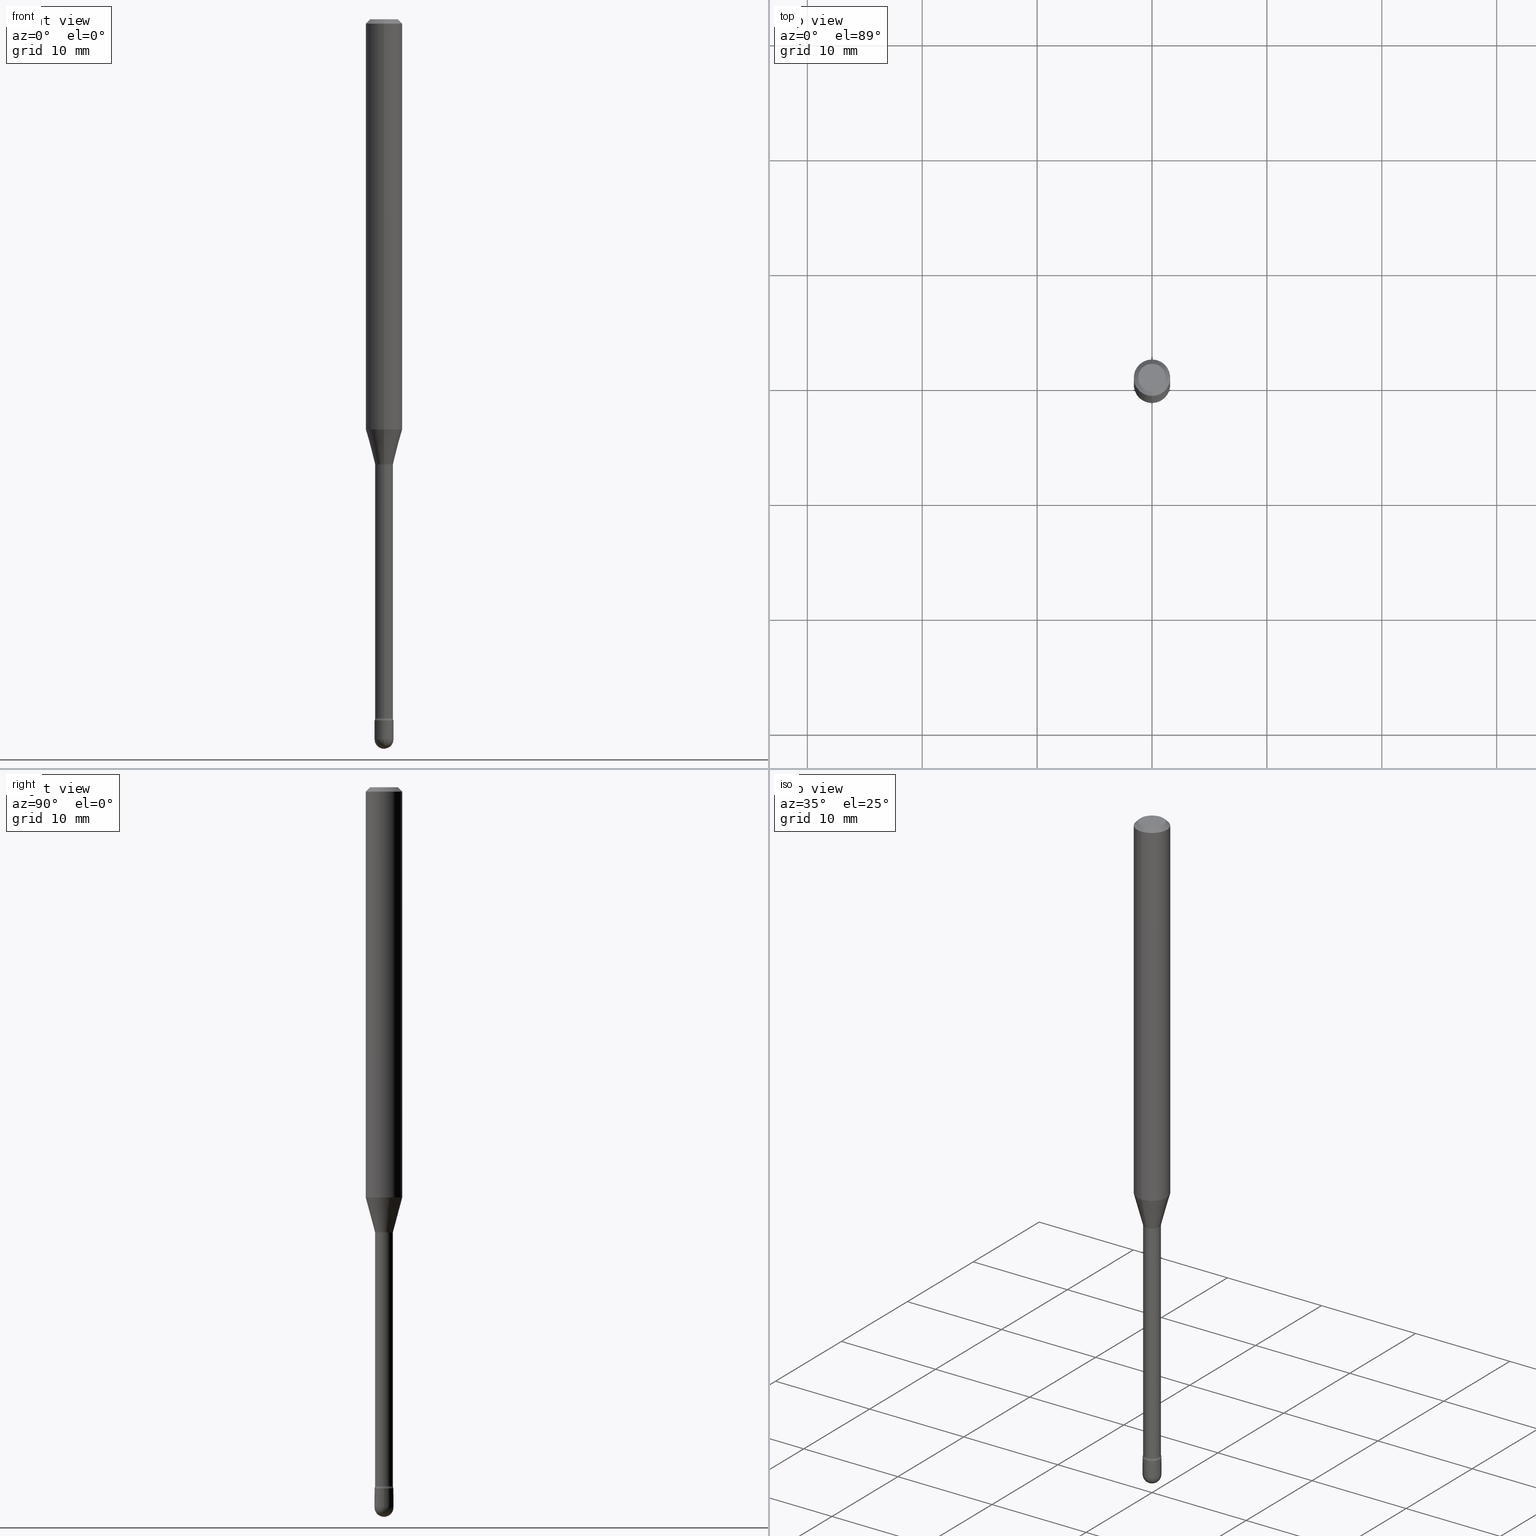
[diagram: canonical four-view strip — front | top / right | iso, engineering-drawing reading convention]
A machine part, canonical four-view strip (front | top / right | iso — engineering-drawing reading convention). The complete STEP part file that produces these views, byte-faithful:
ISO-10303-21;
HEADER;
FILE_DESCRIPTION (( 'STEP AP203' ),
    '1' );
FILE_NAME ('09505.STEP',
    '2024-04-09T23:59:22',
    ( '' ),
    ( '' ),
    'SwSTEP 2.0',
    'SolidWorks 2023',
    '' );
FILE_SCHEMA (( 'CONFIG_CONTROL_DESIGN' ));
ENDSEC;

DATA;
#1 = CARTESIAN_POINT ( 'NONE',  ( 0.000000000000000000, 0.000000000000000000, 0.000000000000000000 ) ) ;
#2 = DATE_AND_TIME ( #429, #498 ) ;
#3 = CARTESIAN_POINT ( 'NONE',  ( -2.309263891219726642E-16, -0.03250000000000868861, -2.467499999999999805 ) ) ;
#4 = EDGE_CURVE ( 'NONE', #131, #299, #33, .T. ) ;
#5 = DIRECTION ( 'NONE',  ( -2.445462509514312655E-29, 3.491490356034149509E-15, 1.000000000000000000 ) ) ;
#6 = DIRECTION ( 'NONE',  ( -6.982962677686265922E-15, -1.000000000000000000, 3.491490356034149509E-15 ) ) ;
#7 = DIRECTION ( 'NONE',  ( -2.445462509514312655E-29, 3.491490356034149509E-15, 1.000000000000000000 ) ) ;
#8 = CARTESIAN_POINT ( 'NONE',  ( 5.855929933387993596E-29, -8.360715962634647749E-15, -2.394604224178627838 ) ) ;
#9 = SHAPE_DEFINITION_REPRESENTATION ( #559, #449 ) ;
#10 = DIRECTION ( 'NONE',  ( -6.982962677686265922E-15, -1.000000000000000000, 0.000000000000000000 ) ) ;
#11 = CIRCLE ( 'NONE', #176, 0.03055000000000000077 ) ;
#12 = PRODUCT_DEFINITION_FORMATION_WITH_SPECIFIED_SOURCE ( 'ANY', '', #79, .NOT_KNOWN. ) ;
#13 = CARTESIAN_POINT ( 'NONE',  ( 2.309263891220913384E-16, 0.03249999999999162587, -2.402000000000000135 ) ) ;
#14 = CARTESIAN_POINT ( 'NONE',  ( 2.269462870248644893E-16, 0.03249999999999145933, -2.467499999999999805 ) ) ;
#15 = CC_DESIGN_PERSON_AND_ORGANIZATION_ASSIGNMENT ( #168, #564, ( #208 ) ) ;
#16 = CARTESIAN_POINT ( 'NONE',  ( 6.034194279261823970E-29, -8.615230203595461689E-15, -2.467499999999999805 ) ) ;
#17 = AXIS2_PLACEMENT_3D ( 'NONE', #524, #7, #141 ) ;
#18 = CIRCLE ( 'NONE', #532, 0.06250000000000000000 ) ;
#19 = EDGE_LOOP ( 'NONE', ( #469, #500, #340, #76 ) ) ;
#20 = ORIENTED_EDGE ( 'NONE', *, *, #94, .F. ) ;
#21 = DIRECTION ( 'NONE',  ( -6.982962677686265922E-15, -1.000000000000000000, 3.491490356034149115E-15 ) ) ;
#22 = ORIENTED_EDGE ( 'NONE', *, *, #461, .F. ) ;
#23 = CIRCLE ( 'NONE', #250, 0.03055000000000000077 ) ;
#24 = CONICAL_SURFACE ( 'NONE', #92, 0.06250000000000000000, 0.7853981633974483900 ) ;
#25 = DIRECTION ( 'NONE',  ( -2.445468806185136877E-29, 3.491481338843145188E-15, 1.000000000000000000 ) ) ;
#26 = VERTEX_POINT ( 'NONE', #295 ) ;
#27 = ORIENTED_EDGE ( 'NONE', *, *, #412, .F. ) ;
#28 = CARTESIAN_POINT ( 'NONE',  ( 2.239985974484304837E-16, 0.03054999999999169838, -2.394604224178627838 ) ) ;
#29 = APPROVAL ( #230, 'UNSPECIFIED' ) ;
#30 = DIRECTION ( 'NONE',  ( -2.445462509514312655E-29, 3.491490356034149509E-15, 1.000000000000000000 ) ) ;
#31 = DIRECTION ( 'NONE',  ( -6.982962677686266711E-15, -1.000000000000000000, 3.491490356034149904E-15 ) ) ;
#32 = ORIENTED_EDGE ( 'NONE', *, *, #63, .T. ) ;
#33 = CIRCLE ( 'NONE', #356, 0.01500000000000002720 ) ;
#34 = AXIS2_PLACEMENT_3D ( 'NONE', #499, #104, #53 ) ;
#35 = DIRECTION ( 'NONE',  ( 6.982962677686265922E-15, 1.000000000000000000, -3.491490356034149509E-15 ) ) ;
#36 = DIRECTION ( 'NONE',  ( -2.445462509514312655E-29, 3.491490356034149509E-15, 1.000000000000000000 ) ) ;
#37 = DIRECTION ( 'NONE',  ( -2.445468806185136597E-29, 3.491481338843145583E-15, 1.000000000000000000 ) ) ;
#38 = ADVANCED_FACE ( 'NONE', ( #333 ), #367, .T. ) ;
#39 = FACE_OUTER_BOUND ( 'NONE', #162, .T. ) ;
#40 = PERSON_AND_ORGANIZATION ( #310, #420 ) ;
#41 = EDGE_CURVE ( 'NONE', #387, #547, #174, .T. ) ;
#42 = DIRECTION ( 'NONE',  ( -6.982962677686263555E-15, -1.000000000000000000, 0.000000000000000000 ) ) ;
#43 = AXIS2_PLACEMENT_3D ( 'NONE', #222, #36, #64 ) ;
#44 = AXIS2_PLACEMENT_3D ( 'NONE', #264, #560, #393 ) ;
#45 = DIRECTION ( 'NONE',  ( -6.982962677686265133E-15, -1.000000000000000000, 0.000000000000000000 ) ) ;
#46 = DIRECTION ( 'NONE',  ( -2.445462509514312655E-29, 3.491490356034149509E-15, 1.000000000000000000 ) ) ;
#47 = CARTESIAN_POINT ( 'NONE',  ( 2.269462870248623692E-16, 0.03249999999999161199, -2.402000000000000135 ) ) ;
#48 = DIRECTION ( 'NONE',  ( -1.000000000000000000, 6.982962677686265922E-15, -4.883557194083112340E-29 ) ) ;
#49 = SECURITY_CLASSIFICATION_LEVEL ( 'unclassified' ) ;
#50 = AXIS2_PLACEMENT_3D ( 'NONE', #432, #226, #35 ) ;
#51 = TOROIDAL_SURFACE ( 'NONE', #274, 0.04555000000000008348, 0.01500000000000002720 ) ;
#52 = DIRECTION ( 'NONE',  ( -6.982962677686265922E-15, -1.000000000000000000, 3.491490356034149115E-15 ) ) ;
#53 = DIRECTION ( 'NONE',  ( -6.982962677686265922E-15, -1.000000000000000000, 4.370956789862821150E-15 ) ) ;
#54 = CARTESIAN_POINT ( 'NONE',  ( 0.03250000000000000111, -8.727830476773152219E-15, -2.467499999999999805 ) ) ;
#55 = ORIENTED_EDGE ( 'NONE', *, *, #434, .F. ) ;
#56 = AXIS2_PLACEMENT_3D ( 'NONE', #388, #555, #424 ) ;
#57 = CIRCLE ( 'NONE', #265, 0.03055000000000005975 ) ;
#58 = FACE_OUTER_BOUND ( 'NONE', #70, .T. ) ;
#59 = VERTEX_POINT ( 'NONE', #123 ) ;
#60 = ORIENTED_EDGE ( 'NONE', *, *, #511, .T. ) ;
#61 = CARTESIAN_POINT ( 'NONE',  ( 6.034194279261823970E-29, -8.615230203595461689E-15, -2.467499999999999805 ) ) ;
#62 = CARTESIAN_POINT ( 'NONE',  ( 3.437735765853609990E-29, -4.908200893030823515E-15, -1.405760976698174902 ) ) ;
#63 = EDGE_CURVE ( 'NONE', #99, #26, #442, .T. ) ;
#64 = DIRECTION ( 'NONE',  ( -6.982962677686265922E-15, -1.000000000000000000, 3.491490356034149115E-15 ) ) ;
#65 = ORIENTED_EDGE ( 'NONE', *, *, #214, .F. ) ;
#66 = MECHANICAL_CONTEXT ( 'NONE', #171, 'mechanical' ) ;
#67 = DIRECTION ( 'NONE',  ( 7.105427357600997914E-15, 1.000000000000000000, 0.000000000000000000 ) ) ;
#68 = CIRCLE ( 'NONE', #34, 0.06250000000000000000 ) ;
#69 = AXIS2_PLACEMENT_3D ( 'NONE', #328, #376, #165 ) ;
#70 = EDGE_LOOP ( 'NONE', ( #203, #20, #32, #422 ) ) ;
#71 = DIRECTION ( 'NONE',  ( -1.807323732225326589E-15, -0.2588190451025176864, 0.9659258262890690894 ) ) ;
#72 = DIRECTION ( 'NONE',  ( 1.000000000000000000, -7.105427357601001070E-15, 4.926315618970823189E-29 ) ) ;
#73 = ORIENTED_EDGE ( 'NONE', *, *, #277, .T. ) ;
#74 = DATE_AND_TIME ( #220, #346 ) ;
#75 = LINE ( 'NONE', #180, #326 ) ;
#76 = ORIENTED_EDGE ( 'NONE', *, *, #405, .F. ) ;
#77 = DIRECTION ( 'NONE',  ( -1.000000000000000000, 6.982962677686266711E-15, -4.883557194083112901E-29 ) ) ;
#78 = DIRECTION ( 'NONE',  ( -2.445462509514312655E-29, 3.491490356034149509E-15, 1.000000000000000000 ) ) ;
#79 = PRODUCT ( '09505', '09505', '', ( #66 ) ) ;
#80 = PRODUCT_RELATED_PRODUCT_CATEGORY ( 'detail', '', ( #79 ) ) ;
#81 = DIRECTION ( 'NONE',  ( -2.445462509514312375E-29, 3.491490356034149509E-15, 1.000000000000000000 ) ) ;
#82 = CONICAL_SURFACE ( 'NONE', #161, 0.03106111260566398607, 0.2617993877991497409 ) ;
#83 = EDGE_CURVE ( 'NONE', #549, #59, #251, .T. ) ;
#84 = DIRECTION ( 'NONE',  ( -2.445468806185136597E-29, 3.491481338843145583E-15, 1.000000000000000000 ) ) ;
#85 = ORIENTED_EDGE ( 'NONE', *, *, #214, .T. ) ;
#86 = DIRECTION ( 'NONE',  ( -6.982962677686265922E-15, -1.000000000000000000, 0.000000000000000000 ) ) ;
#87 = ADVANCED_FACE ( 'NONE', ( #257 ), #268, .F. ) ;
#88 = FACE_OUTER_BOUND ( 'NONE', #391, .T. ) ;
#89 = DIRECTION ( 'NONE',  ( -2.445462509514312655E-29, 3.491490356034149509E-15, 1.000000000000000000 ) ) ;
#90 = DATE_AND_TIME ( #445, #557 ) ;
#91 = CARTESIAN_POINT ( 'NONE',  ( 3.724665611643138049E-29, -5.317862781338191581E-15, -1.523092501787273401 ) ) ;
#92 = AXIS2_PLACEMENT_3D ( 'NONE', #210, #481, #382 ) ;
#93 = ORIENTED_EDGE ( 'NONE', *, *, #434, .T. ) ;
#94 = EDGE_CURVE ( 'NONE', #99, #182, #451, .T. ) ;
#95 = DIRECTION ( 'NONE',  ( 1.000000000000000000, -6.982962677686287221E-15, 0.000000000000000000 ) ) ;
#96 = PERSON_AND_ORGANIZATION ( #310, #420 ) ;
#97 = LINE ( 'NONE', #132, #312 ) ;
#98 = ADVANCED_FACE ( 'NONE', ( #517 ), #341, .T. ) ;
#99 = VERTEX_POINT ( 'NONE', #553 ) ;
#100 = DIRECTION ( 'NONE',  ( -2.445468806185136597E-29, 3.491481338843145583E-15, 1.000000000000000000 ) ) ;
#101 = CIRCLE ( 'NONE', #228, 0.06250000000000000000 ) ;
#102 = TOROIDAL_SURFACE ( 'NONE', #540, 0.04555000000000000021, 0.01500000000000002373 ) ;
#103 = SECURITY_CLASSIFICATION ( '', '', #49 ) ;
#104 = DIRECTION ( 'NONE',  ( -2.445462509514312655E-29, 3.491490356034149509E-15, 1.000000000000000000 ) ) ;
#105 = CARTESIAN_POINT ( 'NONE',  ( 4.440892098500967344E-16, 0.06249999999999506645, -1.405760976698175124 ) ) ;
#106 = ORIENTED_EDGE ( 'NONE', *, *, #133, .T. ) ;
#107 = EDGE_CURVE ( 'NONE', #286, #467, #164, .T. ) ;
#108 = DIRECTION ( 'NONE',  ( -6.982962677686265133E-15, -1.000000000000000000, 0.000000000000000000 ) ) ;
#109 = EDGE_LOOP ( 'NONE', ( #179, #417, #27, #411 ) ) ;
#110 = ORIENTED_EDGE ( 'NONE', *, *, #475, .F. ) ;
#111 = COORDINATED_UNIVERSAL_TIME_OFFSET ( 5, 0, .BEHIND. ) ;
#112 = ORIENTED_EDGE ( 'NONE', *, *, #394, .T. ) ;
#113 = AXIS2_PLACEMENT_3D ( 'NONE', #369, #381, #267 ) ;
#114 = CC_DESIGN_APPROVAL ( #29, ( #103 ) ) ;
#115 = VERTEX_POINT ( 'NONE', #247 ) ;
#116 = EDGE_CURVE ( 'NONE', #115, #286, #204, .T. ) ;
#117 =( NAMED_UNIT ( * ) PLANE_ANGLE_UNIT ( ) SI_UNIT ( $, .RADIAN. ) );
#118 = ORIENTED_EDGE ( 'NONE', *, *, #244, .F. ) ;
#119 = EDGE_LOOP ( 'NONE', ( #287, #324 ) ) ;
#120 = DIRECTION ( 'NONE',  ( -6.982962677686265922E-15, -1.000000000000000000, 3.491490356034149115E-15 ) ) ;
#121 = ORIENTED_EDGE ( 'NONE', *, *, #541, .F. ) ;
#122 = DIRECTION ( 'NONE',  ( 6.982962677686266711E-15, 1.000000000000000000, 0.000000000000000000 ) ) ;
#123 = CARTESIAN_POINT ( 'NONE',  ( -4.364351673553574033E-16, -0.06250000000000494049, -1.405760976698174458 ) ) ;
#124 = EDGE_CURVE ( 'NONE', #59, #467, #172, .T. ) ;
#125 = AXIS2_PLACEMENT_3D ( 'NONE', #272, #466, #392 ) ;
#126 = EDGE_LOOP ( 'NONE', ( #554, #93, #118, #505 ) ) ;
#127 = ORIENTED_EDGE ( 'NONE', *, *, #457, .T. ) ;
#128 = ORIENTED_EDGE ( 'NONE', *, *, #4, .F. ) ;
#129 = FACE_OUTER_BOUND ( 'NONE', #334, .T. ) ;
#130 = CYLINDRICAL_SURFACE ( 'NONE', #147, 0.06250000000000000000 ) ;
#131 = VERTEX_POINT ( 'NONE', #296 ) ;
#132 = CARTESIAN_POINT ( 'NONE',  ( 0.03250000000000000111, -2.269462870248036977E-16, 1.584757452133679343E-30 ) ) ;
#133 = EDGE_CURVE ( 'NONE', #370, #361, #433, .T. ) ;
#134 = CC_DESIGN_PERSON_AND_ORGANIZATION_ASSIGNMENT ( #397, #358, ( #103 ) ) ;
#135 = VERTEX_POINT ( 'NONE', #218 ) ;
#136 = CONICAL_SURFACE ( 'NONE', #431, 0.06250000000000000000, 0.7853981633974483900 ) ;
#137 =( GEOMETRIC_REPRESENTATION_CONTEXT ( 3 ) GLOBAL_UNCERTAINTY_ASSIGNED_CONTEXT ( ( #464 ) ) GLOBAL_UNIT_ASSIGNED_CONTEXT ( ( #507, #117, #463 ) ) REPRESENTATION_CONTEXT ( 'NONE', 'WORKASPACE' ) );
#138 = ADVANCED_FACE ( 'NONE', ( #515 ), #130, .T. ) ;
#139 = PERSON_AND_ORGANIZATION_ROLE ( 'design_owner' ) ;
#140 = DATE_AND_TIME ( #400, #410 ) ;
#141 = DIRECTION ( 'NONE',  ( -6.982962677686265922E-15, -1.000000000000000000, 0.000000000000000000 ) ) ;
#142 = COORDINATED_UNIVERSAL_TIME_OFFSET ( 5, 0, .BEHIND. ) ;
#143 = DIRECTION ( 'NONE',  ( -2.445462509514312655E-29, 3.491490356034149509E-15, 1.000000000000000000 ) ) ;
#144 = ADVANCED_FACE ( 'NONE', ( #477 ), #24, .T. ) ;
#145 = DIRECTION ( 'NONE',  ( 2.445462509514312655E-29, -3.491490356034149509E-15, -1.000000000000000000 ) ) ;
#146 = DIRECTION ( 'NONE',  ( -2.445462509514312655E-29, 3.491490356034149509E-15, 1.000000000000000000 ) ) ;
#147 = AXIS2_PLACEMENT_3D ( 'NONE', #254, #298, #476 ) ;
#148 = DATE_TIME_ROLE ( 'classification_date' ) ;
#149 = CARTESIAN_POINT ( 'NONE',  ( 0.000000000000000000, 0.000000000000000000, 0.000000000000000000 ) ) ;
#150 = APPROVAL_ROLE ( '' ) ;
#151 = EDGE_CURVE ( 'NONE', #182, #299, #421, .T. ) ;
#152 = CYLINDRICAL_SURFACE ( 'NONE', #319, 0.03250000000000000111 ) ;
#153 = DIRECTION ( 'NONE',  ( -2.445468806185136597E-29, 3.491481338843145583E-15, 1.000000000000000000 ) ) ;
#154 = EDGE_CURVE ( 'NONE', #131, #549, #483, .T. ) ;
#155 = AXIS2_PLACEMENT_3D ( 'NONE', #8, #46, #52 ) ;
#156 = FACE_OUTER_BOUND ( 'NONE', #379, .T. ) ;
#157 = CARTESIAN_POINT ( 'NONE',  ( -4.364351673553912750E-16, -0.06250000000000005551, -0.01499999999999986587 ) ) ;
#158 = ORIENTED_EDGE ( 'NONE', *, *, #423, .T. ) ;
#159 = DIRECTION ( 'NONE',  ( -1.000000000000000000, 6.982962677686266711E-15, -4.883557194083112901E-29 ) ) ;
#160 = DIRECTION ( 'NONE',  ( -2.445462509514312655E-29, 3.491490356034149509E-15, 1.000000000000000000 ) ) ;
#161 = AXIS2_PLACEMENT_3D ( 'NONE', #91, #146, #10 ) ;
#162 = EDGE_LOOP ( 'NONE', ( #245, #558, #158, #409 ) ) ;
#163 = CARTESIAN_POINT ( 'NONE',  ( -3.180739499685514567E-16, -0.04555000000000844484, -2.394604224178627394 ) ) ;
#164 = LINE ( 'NONE', #510, #402 ) ;
#165 = DIRECTION ( 'NONE',  ( 1.000000000000000000, 0.000000000000000000, 0.000000000000000000 ) ) ;
#166 = ORIENTED_EDGE ( 'NONE', *, *, #154, .F. ) ;
#167 = ORIENTED_EDGE ( 'NONE', *, *, #116, .F. ) ;
#168 = PERSON_AND_ORGANIZATION ( #310, #420 ) ;
#169 = ORIENTED_EDGE ( 'NONE', *, *, #423, .F. ) ;
#170 = VERTEX_POINT ( 'NONE', #343 ) ;
#171 = APPLICATION_CONTEXT ( 'configuration controlled 3d designs of mechanical parts and assemblies' ) ;
#172 = LINE ( 'NONE', #386, #428 ) ;
#173 = EDGE_LOOP ( 'NONE', ( #166, #305, #259, #121 ) ) ;
#174 = CIRCLE ( 'NONE', #241, 0.03250000000000013295 ) ;
#175 = DIRECTION ( 'NONE',  ( -6.982962677686265922E-15, -1.000000000000000000, 0.000000000000000000 ) ) ;
#176 = AXIS2_PLACEMENT_3D ( 'NONE', #238, #406, #108 ) ;
#177 = CARTESIAN_POINT ( 'NONE',  ( 2.170708057747107848E-16, 0.03055000000000002852, 3.714083685144026992E-16 ) ) ;
#178 = APPROVAL_PERSON_ORGANIZATION ( #528, #525, #150 ) ;
#179 = ORIENTED_EDGE ( 'NONE', *, *, #244, .T. ) ;
#180 = CARTESIAN_POINT ( 'NONE',  ( 4.440892098500625669E-16, 0.06250000000000000000, 2.598552516391117189E-16 ) ) ;
#181 = CARTESIAN_POINT ( 'NONE',  ( 3.724665611643138049E-29, -5.317862781338191581E-15, -1.523092501787273401 ) ) ;
#182 = VERTEX_POINT ( 'NONE', #28 ) ;
#183 = DIRECTION ( 'NONE',  ( -2.445462509514312655E-29, 3.491490356034149509E-15, 1.000000000000000000 ) ) ;
#184 = EDGE_CURVE ( 'NONE', #26, #280, #249, .T. ) ;
#185 = FACE_OUTER_BOUND ( 'NONE', #173, .T. ) ;
#186 = CARTESIAN_POINT ( 'NONE',  ( -0.03250000000000000111, 2.309263891220325683E-16, -1.598653904332844407E-30 ) ) ;
#187 = ORIENTED_EDGE ( 'NONE', *, *, #548, .F. ) ;
#188 = EDGE_CURVE ( 'NONE', #316, #370, #458, .T. ) ;
#189 = AXIS2_PLACEMENT_3D ( 'NONE', #1, #84, #438 ) ;
#190 = CARTESIAN_POINT ( 'NONE',  ( 2.207024792658474506E-16, 0.03106111260565866741, -1.523092501787273401 ) ) ;
#191 = PERSON_AND_ORGANIZATION_ROLE ( 'design_supplier' ) ;
#192 = CC_DESIGN_SECURITY_CLASSIFICATION ( #103, ( #12 ) ) ;
#193 = CARTESIAN_POINT ( 'NONE',  ( 5.855929933387993596E-29, -8.360715962634647749E-15, -2.394604224178627838 ) ) ;
#194 = ADVANCED_FACE ( 'NONE', ( #156 ), #205, .T. ) ;
#195 = CARTESIAN_POINT ( 'NONE',  ( 6.034194279261823970E-29, -8.615230203595461689E-15, -2.467499999999999805 ) ) ;
#196 = PERSON_AND_ORGANIZATION ( #310, #420 ) ;
#197 = CARTESIAN_POINT ( 'NONE',  ( 2.170708057747693824E-16, 0.03054999999999466823, -1.526974787463811323 ) ) ;
#198 = APPROVAL_DATE_TIME ( #140, #525 ) ;
#199 = APPROVAL_STATUS ( 'not_yet_approved' ) ;
#200 = CC_DESIGN_PERSON_AND_ORGANIZATION_ASSIGNMENT ( #447, #536, ( #12 ) ) ;
#201 = CARTESIAN_POINT ( 'NONE',  ( 4.364351673553919652E-16, 0.06249999999999995143, -0.01500000000000030129 ) ) ;
#202 = ADVANCED_FACE ( 'NONE', ( #455 ), #303, .F. ) ;
#203 = ORIENTED_EDGE ( 'NONE', *, *, #365, .F. ) ;
#204 = CIRCLE ( 'NONE', #545, 0.04749999999999999362 ) ;
#205 = CYLINDRICAL_SURFACE ( 'NONE', #282, 0.03055000000000002852 ) ;
#206 = DIRECTION ( 'NONE',  ( -2.445468806185136597E-29, 3.491481338843145583E-15, 1.000000000000000000 ) ) ;
#207 = ORIENTED_EDGE ( 'NONE', *, *, #235, .T. ) ;
#208 = PRODUCT_DEFINITION ( 'UNKNOWN', '', #12, #374 ) ;
#209 = AXIS2_PLACEMENT_3D ( 'NONE', #61, #159, #122 ) ;
#210 = CARTESIAN_POINT ( 'NONE',  ( 3.668193764271489529E-31, -5.237235534051253304E-17, -0.01500000000000008271 ) ) ;
#211 = ORIENTED_EDGE ( 'NONE', *, *, #541, .T. ) ;
#212 = DIMENSIONAL_EXPONENTS ( 1.000000000000000000, 0.000000000000000000, 0.000000000000000000, 0.000000000000000000, 0.000000000000000000, 0.000000000000000000, 0.000000000000000000 ) ;
#213 = EDGE_LOOP ( 'NONE', ( #281, #366, #462, #248 ) ) ;
#214 = EDGE_CURVE ( 'NONE', #135, #299, #23, .T. ) ;
#215 = VERTEX_POINT ( 'NONE', #105 ) ;
#216 = AXIS2_PLACEMENT_3D ( 'NONE', #355, #533, #95 ) ;
#217 = AXIS2_PLACEMENT_3D ( 'NONE', #195, #37, #223 ) ;
#218 = CARTESIAN_POINT ( 'NONE',  ( -2.133295098032780799E-16, -0.03055000000000532984, -1.526974787463811323 ) ) ;
#219 = ORIENTED_EDGE ( 'NONE', *, *, #342, .T. ) ;
#220 = CALENDAR_DATE ( 2024, 9, 4 ) ;
#221 = ADVANCED_FACE ( 'NONE', ( #279 ), #229, .T. ) ;
#222 = CARTESIAN_POINT ( 'NONE',  ( -1.169113584055446105E-44, 1.669184350826100908E-30, 4.780733988912460139E-16 ) ) ;
#223 = DIRECTION ( 'NONE',  ( 1.000000000000000000, -6.982962677686287221E-15, 0.000000000000000000 ) ) ;
#224 = CARTESIAN_POINT ( 'NONE',  ( 6.115061660682758489E-29, -8.726713296059249645E-15, -2.500000000000000000 ) ) ;
#225 = DIRECTION ( 'NONE',  ( -6.982962677686265922E-15, -1.000000000000000000, 3.483106191921935554E-15 ) ) ;
#226 = DIRECTION ( 'NONE',  ( 2.445462509514312375E-29, -3.491490356034149509E-15, -1.000000000000000000 ) ) ;
#227 = CARTESIAN_POINT ( 'NONE',  ( -1.169113584055446105E-44, 1.669184350826100908E-30, 4.780733988912460139E-16 ) ) ;
#228 = AXIS2_PLACEMENT_3D ( 'NONE', #62, #372, #289 ) ;
#229 = CYLINDRICAL_SURFACE ( 'NONE', #189, 0.03250000000000000111 ) ;
#230 = APPROVAL_STATUS ( 'not_yet_approved' ) ;
#231 = CARTESIAN_POINT ( 'NONE',  ( -2.168985900527247677E-16, -0.03106111260566930474, -1.523092501787273401 ) ) ;
#232 = ADVANCED_FACE ( 'NONE', ( #39 ), #51, .F. ) ;
#233 = CC_DESIGN_PERSON_AND_ORGANIZATION_ASSIGNMENT ( #196, #191, ( #12 ) ) ;
#234 = AXIS2_PLACEMENT_3D ( 'NONE', #302, #48, #42 ) ;
#235 = EDGE_CURVE ( 'NONE', #99, #135, #269, .T. ) ;
#236 = APPROVAL_ROLE ( '' ) ;
#237 = CARTESIAN_POINT ( 'NONE',  ( -3.773273898774340269E-16, -0.04749999999999999362, 8.309918815664942751E-17 ) ) ;
#238 = CARTESIAN_POINT ( 'NONE',  ( 3.734159595716336205E-29, -5.331417744337191746E-15, -1.526974787463811323 ) ) ;
#239 = CARTESIAN_POINT ( 'NONE',  ( 3.724665611643138049E-29, -5.317862781338191581E-15, -1.523092501787273401 ) ) ;
#240 = ORIENTED_EDGE ( 'NONE', *, *, #480, .F. ) ;
#241 = AXIS2_PLACEMENT_3D ( 'NONE', #416, #512, #373 ) ;
#242 = CIRCLE ( 'NONE', #294, 0.01500000000000002720 ) ;
#243 = EDGE_LOOP ( 'NONE', ( #128, #240, #211, #85 ) ) ;
#244 = EDGE_CURVE ( 'NONE', #59, #215, #101, .T. ) ;
#245 = ORIENTED_EDGE ( 'NONE', *, *, #394, .F. ) ;
#246 = DIRECTION ( 'NONE',  ( -2.445462509514312655E-29, 3.491490356034149509E-15, 1.000000000000000000 ) ) ;
#247 = CARTESIAN_POINT ( 'NONE',  ( 3.840629472727447874E-16, 0.04749999999999999362, -2.485923956665947374E-16 ) ) ;
#248 = ORIENTED_EDGE ( 'NONE', *, *, #188, .F. ) ;
#249 = CIRCLE ( 'NONE', #17, 0.03250000000000000111 ) ;
#250 = AXIS2_PLACEMENT_3D ( 'NONE', #486, #89, #45 ) ;
#251 = LINE ( 'NONE', #473, #273 ) ;
#252 = CC_DESIGN_APPROVAL ( #327, ( #208 ) ) ;
#253 = ADVANCED_FACE ( 'NONE', ( #58 ), #418, .F. ) ;
#254 = CARTESIAN_POINT ( 'NONE',  ( -1.169113584055446105E-44, 1.669184350826100908E-30, 4.780733988912460139E-16 ) ) ;
#255 = ORIENTED_EDGE ( 'NONE', *, *, #235, .F. ) ;
#256 =( LENGTH_UNIT ( ) NAMED_UNIT ( * ) SI_UNIT ( $, .METRE. ) );
#257 = FACE_OUTER_BOUND ( 'NONE', #119, .T. ) ;
#258 = CARTESIAN_POINT ( 'NONE',  ( -0.03250000000000000111, -8.269957800626316495E-15, -2.467499999999999805 ) ) ;
#259 = ORIENTED_EDGE ( 'NONE', *, *, #475, .T. ) ;
#260 = DIRECTION ( 'NONE',  ( -2.445462509514312655E-29, 3.491490356034149509E-15, 1.000000000000000000 ) ) ;
#261 = EDGE_LOOP ( 'NONE', ( #427, #112, #207, #110 ) ) ;
#262 = SPHERICAL_SURFACE ( 'NONE', #283, 0.03250000000000013295 ) ;
#263 = VECTOR ( 'NONE', #25, 39.37007874015748143 ) ;
#264 = CARTESIAN_POINT ( 'NONE',  ( 3.668193764271489529E-31, -5.237235534051253304E-17, -0.01500000000000008271 ) ) ;
#265 = AXIS2_PLACEMENT_3D ( 'NONE', #297, #78, #389 ) ;
#266 = DIRECTION ( 'NONE',  ( 6.982962677686266711E-15, 1.000000000000000000, 0.000000000000000000 ) ) ;
#267 = DIRECTION ( 'NONE',  ( 1.000000000000000000, -6.982962677686287221E-15, 0.000000000000000000 ) ) ;
#268 = PLANE ( 'NONE',  #50 ) ;
#269 = LINE ( 'NONE', #472, #546 ) ;
#270 = CARTESIAN_POINT ( 'NONE',  ( 3.668193764271489529E-31, -5.237235534051253304E-17, -0.01500000000000008271 ) ) ;
#271 = CALENDAR_DATE ( 2024, 9, 4 ) ;
#272 = CARTESIAN_POINT ( 'NONE',  ( 5.874016072456698366E-29, -8.386538175901236044E-15, -2.402000000000000135 ) ) ;
#273 = VECTOR ( 'NONE', #71, 39.37007874015748854 ) ;
#274 = AXIS2_PLACEMENT_3D ( 'NONE', #193, #160, #120 ) ;
#275 = DIRECTION ( 'NONE',  ( -6.982962677686266711E-15, -1.000000000000000000, 3.491490356034149904E-15 ) ) ;
#276 = DIRECTION ( 'NONE',  ( 1.000000000000000000, -6.982962677686265922E-15, 4.883557194083112340E-29 ) ) ;
#277 = EDGE_CURVE ( 'NONE', #387, #316, #497, .T. ) ;
#278 = AXIS2_PLACEMENT_3D ( 'NONE', #435, #441, #308 ) ;
#279 = FACE_OUTER_BOUND ( 'NONE', #364, .T. ) ;
#280 = VERTEX_POINT ( 'NONE', #13 ) ;
#281 = ORIENTED_EDGE ( 'NONE', *, *, #277, .F. ) ;
#282 = AXIS2_PLACEMENT_3D ( 'NONE', #227, #398, #351 ) ;
#283 = AXIS2_PLACEMENT_3D ( 'NONE', #301, #77, #266 ) ;
#284 = CARTESIAN_POINT ( 'NONE',  ( 3.236522161387629591E-16, 0.04554999999999466420, -1.526974787463811545 ) ) ;
#285 = CC_DESIGN_DATE_AND_TIME_ASSIGNMENT ( #90, #148, ( #103 ) ) ;
#286 = VERTEX_POINT ( 'NONE', #237 ) ;
#287 = ORIENTED_EDGE ( 'NONE', *, *, #116, .T. ) ;
#288 = ORIENTED_EDGE ( 'NONE', *, *, #495, .F. ) ;
#289 = DIRECTION ( 'NONE',  ( -6.982962677686265922E-15, -1.000000000000000000, 4.370956789862821150E-15 ) ) ;
#290 = DIRECTION ( 'NONE',  ( -6.982962677686267499E-15, -1.000000000000000000, 0.000000000000000000 ) ) ;
#291 = ORIENTED_EDGE ( 'NONE', *, *, #495, .T. ) ;
#292 = LENGTH_MEASURE_WITH_UNIT ( LENGTH_MEASURE( 0.02539999999999999897 ), #256 );
#293 = AXIS2_PLACEMENT_3D ( 'NONE', #506, #246, #21 ) ;
#294 = AXIS2_PLACEMENT_3D ( 'NONE', #485, #72, #338 ) ;
#295 = CARTESIAN_POINT ( 'NONE',  ( -2.269462870247450261E-16, -0.03250000000000839717, -2.402000000000000135 ) ) ;
#296 = CARTESIAN_POINT ( 'NONE',  ( 3.323958445579722897E-16, 0.03106111260565866394, -1.523092501787273401 ) ) ;
#297 = CARTESIAN_POINT ( 'NONE',  ( 5.855914855353441094E-29, -8.360737555238315567E-15, -2.394604224178627838 ) ) ;
#298 = DIRECTION ( 'NONE',  ( -2.445462509514312655E-29, 3.491490356034149509E-15, 1.000000000000000000 ) ) ;
#299 = VERTEX_POINT ( 'NONE', #197 ) ;
#300 = EDGE_CURVE ( 'NONE', #115, #170, #315, .T. ) ;
#301 = CARTESIAN_POINT ( 'NONE',  ( 6.034194279261823970E-29, -8.615230203595461689E-15, -2.467499999999999805 ) ) ;
#302 = CARTESIAN_POINT ( 'NONE',  ( -3.180739499685720164E-16, -0.04555000000000533622, -1.526974787463811101 ) ) ;
#303 = TOROIDAL_SURFACE ( 'NONE', #522, 0.04555000000000000021, 0.01500000000000002373 ) ;
#304 = AXIS2_PLACEMENT_3D ( 'NONE', #529, #143, #275 ) ;
#305 = ORIENTED_EDGE ( 'NONE', *, *, #4, .T. ) ;
#306 = PERSON_AND_ORGANIZATION ( #310, #420 ) ;
#307 = APPROVAL_ROLE ( '' ) ;
#308 = DIRECTION ( 'NONE',  ( 1.000000000000000000, -6.982962677686265922E-15, 4.876176775795935793E-29 ) ) ;
#309 = ADVANCED_FACE ( 'NONE', ( #535 ), #152, .T. ) ;
#310 = PERSON ( 'UNSPECIFIED', 'UNSPECIFIED', 'UNSPECIFIED', ('UNSPECIFIED'), ('UNSPECIFIED'), ('UNSPECIFIED') ) ;
#311 = DIRECTION ( 'NONE',  ( 6.982962677686265922E-15, 1.000000000000000000, -3.483106191921935554E-15 ) ) ;
#312 = VECTOR ( 'NONE', #531, 39.37007874015748143 ) ;
#313 = ORIENTED_EDGE ( 'NONE', *, *, #412, .T. ) ;
#314 = APPROVAL_DATE_TIME ( #350, #29 ) ;
#315 = LINE ( 'NONE', #201, #371 ) ;
#316 = VERTEX_POINT ( 'NONE', #14 ) ;
#317 = APPLICATION_CONTEXT ( 'configuration controlled 3d designs of mechanical parts and assemblies' ) ;
#318 = DIRECTION ( 'NONE',  ( 1.000000000000000000, -6.982962677686287221E-15, 0.000000000000000000 ) ) ;
#319 = AXIS2_PLACEMENT_3D ( 'NONE', #149, #100, #352 ) ;
#320 = DIRECTION ( 'NONE',  ( -6.982962677686265922E-15, -1.000000000000000000, 3.491490356034149509E-15 ) ) ;
#321 = ORIENTED_EDGE ( 'NONE', *, *, #133, .F. ) ;
#322 = ORIENTED_EDGE ( 'NONE', *, *, #348, .F. ) ;
#323 = DIRECTION ( 'NONE',  ( 1.000000000000000000, -6.982962677686258033E-15, 0.000000000000000000 ) ) ;
#324 = ORIENTED_EDGE ( 'NONE', *, *, #548, .T. ) ;
#325 = VECTOR ( 'NONE', #260, 39.37007874015748143 ) ;
#326 = VECTOR ( 'NONE', #5, 39.37007874015748143 ) ;
#327 = APPROVAL ( #362, 'UNSPECIFIED' ) ;
#328 = CARTESIAN_POINT ( 'NONE',  ( 0.000000000000000000, 0.000000000000000000, 0.000000000000000000 ) ) ;
#329 = ADVANCED_FACE ( 'NONE', ( #538 ), #136, .T. ) ;
#330 = ORIENTED_EDGE ( 'NONE', *, *, #511, .F. ) ;
#331 = ORIENTED_EDGE ( 'NONE', *, *, #94, .T. ) ;
#332 = ORIENTED_EDGE ( 'NONE', *, *, #348, .T. ) ;
#333 = FACE_OUTER_BOUND ( 'NONE', #261, .T. ) ;
#334 = EDGE_LOOP ( 'NONE', ( #470, #73, #322, #482 ) ) ;
#335 = CLOSED_SHELL ( 'NONE', ( #221, #550, #508, #450, #309 ) ) ;
#336 = CIRCLE ( 'NONE', #125, 0.03250000000000000111 ) ;
#337 = DIRECTION ( 'NONE',  ( 1.000000000000000000, -7.105427357601001070E-15, 4.926315618970823189E-29 ) ) ;
#338 = DIRECTION ( 'NONE',  ( 7.105427357601001859E-15, 1.000000000000000000, 0.000000000000000000 ) ) ;
#339 = DIRECTION ( 'NONE',  ( -4.851104656540964275E-15, -0.7071067811865500152, -0.7071067811865450192 ) ) ;
#340 = ORIENTED_EDGE ( 'NONE', *, *, #124, .T. ) ;
#341 = CYLINDRICAL_SURFACE ( 'NONE', #43, 0.06250000000000000000 ) ;
#342 = EDGE_CURVE ( 'NONE', #361, #551, #490, .T. ) ;
#343 = CARTESIAN_POINT ( 'NONE',  ( 4.440892098500972274E-16, 0.06249999999999995143, -0.01500000000000030129 ) ) ;
#344 = EDGE_LOOP ( 'NONE', ( #321, #465, #127, #60, #518 ) ) ;
#345 = AXIS2_PLACEMENT_3D ( 'NONE', #426, #516, #513 ) ;
#346 = LOCAL_TIME ( 19, 59, 22.00000000000000000, #404 ) ;
#347 = DIRECTION ( 'NONE',  ( 1.839019923739596765E-15, 0.2588190451025244587, 0.9659258262890673130 ) ) ;
#348 = EDGE_CURVE ( 'NONE', #456, #316, #471, .T. ) ;
#349 = CARTESIAN_POINT ( 'NONE',  ( 5.874000947853379180E-29, -8.386559835194027809E-15, -2.402000000000000135 ) ) ;
#350 = DATE_AND_TIME ( #271, #460 ) ;
#351 = DIRECTION ( 'NONE',  ( -6.982962677686265922E-15, -1.000000000000000000, 3.491490356034149115E-15 ) ) ;
#352 = DIRECTION ( 'NONE',  ( 1.000000000000000000, -6.982962677686267499E-15, 4.876176775795936353E-29 ) ) ;
#353 = DIRECTION ( 'NONE',  ( -2.445462509514312655E-29, 3.491490356034149509E-15, 1.000000000000000000 ) ) ;
#354 = ADVANCED_FACE ( 'NONE', ( #437 ), #443, .T. ) ;
#355 = CARTESIAN_POINT ( 'NONE',  ( 6.034194279261823970E-29, -8.615230203595461689E-15, -2.467499999999999805 ) ) ;
#356 = AXIS2_PLACEMENT_3D ( 'NONE', #284, #337, #67 ) ;
#357 = CC_DESIGN_APPROVAL ( #525, ( #12 ) ) ;
#358 = PERSON_AND_ORGANIZATION_ROLE ( 'classification_officer' ) ;
#359 = DIRECTION ( 'NONE',  ( 4.937700262164548042E-15, 0.7071067811865451302, -0.7071067811865499042 ) ) ;
#360 = COORDINATED_UNIVERSAL_TIME_OFFSET ( 5, 0, .BEHIND. ) ;
#361 = VERTEX_POINT ( 'NONE', #474 ) ;
#362 = APPROVAL_STATUS ( 'not_yet_approved' ) ;
#363 = AXIS2_PLACEMENT_3D ( 'NONE', #47, #81, #6 ) ;
#364 = EDGE_LOOP ( 'NONE', ( #493, #106, #288, #330, #332 ) ) ;
#365 = EDGE_CURVE ( 'NONE', #182, #280, #242, .T. ) ;
#366 = ORIENTED_EDGE ( 'NONE', *, *, #41, .T. ) ;
#367 = CYLINDRICAL_SURFACE ( 'NONE', #293, 0.03055000000000002852 ) ;
#368 = CC_DESIGN_PERSON_AND_ORGANIZATION_ASSIGNMENT ( #306, #139, ( #79 ) ) ;
#369 = CARTESIAN_POINT ( 'NONE',  ( 6.034194279261823970E-29, -8.615230203595461689E-15, -2.467499999999999805 ) ) ;
#370 = VERTEX_POINT ( 'NONE', #258 ) ;
#371 = VECTOR ( 'NONE', #359, 39.37007874015748143 ) ;
#372 = DIRECTION ( 'NONE',  ( -2.445462509514312655E-29, 3.491490356034149509E-15, 1.000000000000000000 ) ) ;
#373 = DIRECTION ( 'NONE',  ( -7.105427357601001859E-15, -1.000000000000000000, 0.000000000000000000 ) ) ;
#374 = DESIGN_CONTEXT ( 'detailed design', #317, 'design' ) ;
#375 = CARTESIAN_POINT ( 'NONE',  ( 2.023507070015994248E-45, -2.889132798842179282E-31, -8.274660375497266727E-17 ) ) ;
#376 = DIRECTION ( 'NONE',  ( 0.000000000000000000, 0.000000000000000000, 1.000000000000000000 ) ) ;
#377 = ORIENTED_EDGE ( 'NONE', *, *, #300, .T. ) ;
#378 = EDGE_LOOP ( 'NONE', ( #291, #219 ) ) ;
#379 = EDGE_LOOP ( 'NONE', ( #331, #380, #65, #255 ) ) ;
#380 = ORIENTED_EDGE ( 'NONE', *, *, #151, .T. ) ;
#381 = DIRECTION ( 'NONE',  ( -2.445468806185136597E-29, 3.491481338843145583E-15, 1.000000000000000000 ) ) ;
#382 = DIRECTION ( 'NONE',  ( 6.982962677686265922E-15, 1.000000000000000000, -3.483106191921935554E-15 ) ) ;
#383 = ORIENTED_EDGE ( 'NONE', *, *, #300, .F. ) ;
#384 = ORIENTED_EDGE ( 'NONE', *, *, #83, .T. ) ;
#385 = AXIS2_PLACEMENT_3D ( 'NONE', #16, #153, #318 ) ;
#386 = CARTESIAN_POINT ( 'NONE',  ( -4.364351673553916201E-16, -0.06250000000000000000, 6.962915461433803582E-16 ) ) ;
#387 = VERTEX_POINT ( 'NONE', #224 ) ;
#388 = CARTESIAN_POINT ( 'NONE',  ( 5.855914855353441094E-29, -8.360737555238315567E-15, -2.394604224178627838 ) ) ;
#389 = DIRECTION ( 'NONE',  ( -6.982962677686265922E-15, -1.000000000000000000, 0.000000000000000000 ) ) ;
#390 = DIRECTION ( 'NONE',  ( -2.445462509514312655E-29, 3.491490356034149509E-15, 1.000000000000000000 ) ) ;
#391 = EDGE_LOOP ( 'NONE', ( #414, #169 ) ) ;
#392 = DIRECTION ( 'NONE',  ( 1.000000000000000000, -6.982962677686258033E-15, 0.000000000000000000 ) ) ;
#393 = DIRECTION ( 'NONE',  ( -6.982962677686265922E-15, -1.000000000000000000, 3.483106191921935554E-15 ) ) ;
#394 = EDGE_CURVE ( 'NONE', #182, #99, #57, .T. ) ;
#395 = AXIS2_PLACEMENT_3D ( 'NONE', #239, #353, #175 ) ;
#396 = CARTESIAN_POINT ( 'NONE',  ( 3.734169210573929131E-29, -5.331403975313875023E-15, -1.526974787463811323 ) ) ;
#397 = PERSON_AND_ORGANIZATION ( #310, #420 ) ;
#398 = DIRECTION ( 'NONE',  ( -2.445462509514312655E-29, 3.491490356034149509E-15, 1.000000000000000000 ) ) ;
#399 = DIRECTION ( 'NONE',  ( -6.982962677686265922E-15, -1.000000000000000000, 3.491490356034149509E-15 ) ) ;
#400 = CALENDAR_DATE ( 2024, 9, 4 ) ;
#401 = FACE_OUTER_BOUND ( 'NONE', #213, .T. ) ;
#402 = VECTOR ( 'NONE', #339, 39.37007874015748143 ) ;
#403 = AXIS2_PLACEMENT_3D ( 'NONE', #494, #206, #323 ) ;
#404 = COORDINATED_UNIVERSAL_TIME_OFFSET ( 5, 0, .BEHIND. ) ;
#405 = EDGE_CURVE ( 'NONE', #170, #467, #514, .T. ) ;
#406 = DIRECTION ( 'NONE',  ( -2.445462509514312655E-29, 3.491490356034149509E-15, 1.000000000000000000 ) ) ;
#407 = ADVANCED_FACE ( 'NONE', ( #185 ), #102, .F. ) ;
#408 = CIRCLE ( 'NONE', #304, 0.04749999999999999362 ) ;
#409 = ORIENTED_EDGE ( 'NONE', *, *, #63, .F. ) ;
#410 = LOCAL_TIME ( 19, 59, 22.00000000000000000, #360 ) ;
#411 = ORIENTED_EDGE ( 'NONE', *, *, #124, .F. ) ;
#412 = EDGE_CURVE ( 'NONE', #467, #170, #18, .T. ) ;
#413 = EDGE_LOOP ( 'NONE', ( #187, #501, #313, #383 ) ) ;
#414 = ORIENTED_EDGE ( 'NONE', *, *, #184, .F. ) ;
#415 = EDGE_LOOP ( 'NONE', ( #448, #167, #377, #504 ) ) ;
#416 = CARTESIAN_POINT ( 'NONE',  ( 6.034194279261823970E-29, -8.615230203595461689E-15, -2.467499999999999805 ) ) ;
#417 = ORIENTED_EDGE ( 'NONE', *, *, #488, .T. ) ;
#418 = TOROIDAL_SURFACE ( 'NONE', #155, 0.04555000000000008348, 0.01500000000000002720 ) ;
#419 = CIRCLE ( 'NONE', #217, 0.03250000000000000111 ) ;
#420 = ORGANIZATION ( 'UNSPECIFIED', 'UNSPECIFIED', '' ) ;
#421 = LINE ( 'NONE', #177, #325 ) ;
#422 = ORIENTED_EDGE ( 'NONE', *, *, #184, .T. ) ;
#423 = EDGE_CURVE ( 'NONE', #280, #26, #459, .T. ) ;
#424 = DIRECTION ( 'NONE',  ( -6.982962677686265922E-15, -1.000000000000000000, 0.000000000000000000 ) ) ;
#425 = APPROVAL_DATE_TIME ( #74, #327 ) ;
#426 = CARTESIAN_POINT ( 'NONE',  ( 3.724665611643138049E-29, -5.317862781338191581E-15, -1.523092501787273401 ) ) ;
#427 = ORIENTED_EDGE ( 'NONE', *, *, #151, .F. ) ;
#428 = VECTOR ( 'NONE', #30, 39.37007874015748143 ) ;
#429 = CALENDAR_DATE ( 2024, 9, 4 ) ;
#430 = APPLICATION_PROTOCOL_DEFINITION ( 'international standard', 'config_control_design', 1994, #171 ) ;
#431 = AXIS2_PLACEMENT_3D ( 'NONE', #479, #145, #311 ) ;
#432 = CARTESIAN_POINT ( 'NONE',  ( 3.316907271900976096E-16, 0.04749999999999999362, 3.181760565651458471E-17 ) ) ;
#433 = LINE ( 'NONE', #186, #263 ) ;
#434 = EDGE_CURVE ( 'NONE', #131, #215, #519, .T. ) ;
#435 = CARTESIAN_POINT ( 'NONE',  ( 5.874016072456698366E-29, -8.386538175901236044E-15, -2.402000000000000135 ) ) ;
#436 = ADVANCED_FACE ( 'NONE', ( #88 ), #440, .F. ) ;
#437 = FACE_OUTER_BOUND ( 'NONE', #126, .T. ) ;
#438 = DIRECTION ( 'NONE',  ( 1.000000000000000000, -6.982962677686267499E-15, 4.876176775795936353E-29 ) ) ;
#439 = APPLICATION_PROTOCOL_DEFINITION ( 'international standard', 'config_control_design', 1994, #317 ) ;
#440 = PLANE ( 'NONE',  #363 ) ;
#441 = DIRECTION ( 'NONE',  ( -2.438088387897960049E-29, 3.491481338843145188E-15, 1.000000000000000000 ) ) ;
#442 = CIRCLE ( 'NONE', #502, 0.01500000000000002720 ) ;
#443 = CONICAL_SURFACE ( 'NONE', #345, 0.03106111260566398607, 0.2617993877991497409 ) ;
#444 = CARTESIAN_POINT ( 'NONE',  ( 6.034194279261823970E-29, -8.615230203595461689E-15, -2.467499999999999805 ) ) ;
#445 = CALENDAR_DATE ( 2024, 9, 4 ) ;
#446 = DIRECTION ( 'NONE',  ( 6.982962677686266711E-15, 1.000000000000000000, 0.000000000000000000 ) ) ;
#447 = PERSON_AND_ORGANIZATION ( #310, #420 ) ;
#448 = ORIENTED_EDGE ( 'NONE', *, *, #107, .F. ) ;
#449 = ADVANCED_BREP_SHAPE_REPRESENTATION ( '09505', ( #565, #552, #69 ), #137 ) ;
#450 = ADVANCED_FACE ( 'NONE', ( #129 ), #262, .T. ) ;
#451 = CIRCLE ( 'NONE', #56, 0.03055000000000005975 ) ;
#452 = VECTOR ( 'NONE', #347, 39.37007874015748143 ) ;
#453 = APPROVAL_PERSON_ORGANIZATION ( #96, #29, #307 ) ;
#454 = EDGE_CURVE ( 'NONE', #370, #547, #419, .T. ) ;
#455 = FACE_OUTER_BOUND ( 'NONE', #243, .T. ) ;
#456 = VERTEX_POINT ( 'NONE', #54 ) ;
#457 = EDGE_CURVE ( 'NONE', #547, #456, #523, .T. ) ;
#458 = CIRCLE ( 'NONE', #216, 0.03250000000000000111 ) ;
#459 = CIRCLE ( 'NONE', #556, 0.03250000000000000111 ) ;
#460 = LOCAL_TIME ( 19, 59, 22.00000000000000000, #142 ) ;
#461 = EDGE_CURVE ( 'NONE', #215, #59, #68, .T. ) ;
#462 = ORIENTED_EDGE ( 'NONE', *, *, #454, .F. ) ;
#463 =( NAMED_UNIT ( * ) SI_UNIT ( $, .STERADIAN. ) SOLID_ANGLE_UNIT ( ) );
#464 = UNCERTAINTY_MEASURE_WITH_UNIT (LENGTH_MEASURE( 1.000000000000000082E-05 ), #507, 'distance_accuracy_value', 'NONE');
#465 = ORIENTED_EDGE ( 'NONE', *, *, #454, .T. ) ;
#466 = DIRECTION ( 'NONE',  ( -2.445468806185136597E-29, 3.491481338843145583E-15, 1.000000000000000000 ) ) ;
#467 = VERTEX_POINT ( 'NONE', #157 ) ;
#468 = DIRECTION ( 'NONE',  ( -2.445462509514312655E-29, 3.491490356034149509E-15, 1.000000000000000000 ) ) ;
#469 = ORIENTED_EDGE ( 'NONE', *, *, #488, .F. ) ;
#470 = ORIENTED_EDGE ( 'NONE', *, *, #41, .F. ) ;
#471 = CIRCLE ( 'NONE', #113, 0.03250000000000000111 ) ;
#472 = CARTESIAN_POINT ( 'NONE',  ( -2.133295098033156247E-16, -0.03055000000000002852, 5.847384292680894272E-16 ) ) ;
#473 = CARTESIAN_POINT ( 'NONE',  ( -2.168985900527247677E-16, -0.03106111260566930474, -1.523092501787273401 ) ) ;
#474 = CARTESIAN_POINT ( 'NONE',  ( -0.03250000000000000111, -8.269957800626316495E-15, -2.402000000000000135 ) ) ;
#475 = EDGE_CURVE ( 'NONE', #299, #135, #11, .T. ) ;
#476 = DIRECTION ( 'NONE',  ( -6.982962677686265922E-15, -1.000000000000000000, 3.491490356034149115E-15 ) ) ;
#477 = FACE_OUTER_BOUND ( 'NONE', #413, .T. ) ;
#478 = DIRECTION ( 'NONE',  ( -2.445462509514312655E-29, 3.491490356034149509E-15, 1.000000000000000000 ) ) ;
#479 = CARTESIAN_POINT ( 'NONE',  ( 3.668193764271489529E-31, -5.237235534051253304E-17, -0.01500000000000008271 ) ) ;
#480 = EDGE_CURVE ( 'NONE', #549, #131, #503, .T. ) ;
#481 = DIRECTION ( 'NONE',  ( 2.445462509514312655E-29, -3.491490356034149509E-15, -1.000000000000000000 ) ) ;
#482 = ORIENTED_EDGE ( 'NONE', *, *, #457, .F. ) ;
#483 = CIRCLE ( 'NONE', #496, 0.03106111260566398607 ) ;
#484 = CIRCLE ( 'NONE', #234, 0.01500000000000002720 ) ;
#485 = CARTESIAN_POINT ( 'NONE',  ( 3.236522161387847514E-16, 0.04554999999999172905, -2.394604224178627838 ) ) ;
#486 = CARTESIAN_POINT ( 'NONE',  ( 3.734159595716336205E-29, -5.331417744337191746E-15, -1.526974787463811323 ) ) ;
#487 = PLANE ( 'NONE',  #278 ) ;
#488 = EDGE_CURVE ( 'NONE', #215, #170, #75, .T. ) ;
#489 = FACE_OUTER_BOUND ( 'NONE', #520, .T. ) ;
#490 = CIRCLE ( 'NONE', #403, 0.03250000000000000111 ) ;
#491 = APPROVAL_PERSON_ORGANIZATION ( #40, #327, #236 ) ;
#492 = DIRECTION ( 'NONE',  ( -2.445462509514312655E-29, 3.491490356034149509E-15, 1.000000000000000000 ) ) ;
#493 = ORIENTED_EDGE ( 'NONE', *, *, #188, .T. ) ;
#494 = CARTESIAN_POINT ( 'NONE',  ( 5.874016072456698366E-29, -8.386538175901236044E-15, -2.402000000000000135 ) ) ;
#495 = EDGE_CURVE ( 'NONE', #551, #361, #336, .T. ) ;
#496 = AXIS2_PLACEMENT_3D ( 'NONE', #181, #390, #561 ) ;
#497 = CIRCLE ( 'NONE', #566, 0.03250000000000013295 ) ;
#498 = LOCAL_TIME ( 19, 59, 22.00000000000000000, #111 ) ;
#499 = CARTESIAN_POINT ( 'NONE',  ( 3.437735765853609990E-29, -4.908200893030823515E-15, -1.405760976698174902 ) ) ;
#500 = ORIENTED_EDGE ( 'NONE', *, *, #461, .T. ) ;
#501 = ORIENTED_EDGE ( 'NONE', *, *, #107, .T. ) ;
#502 = AXIS2_PLACEMENT_3D ( 'NONE', #163, #509, #290 ) ;
#503 = CIRCLE ( 'NONE', #395, 0.03106111260566398607 ) ;
#504 = ORIENTED_EDGE ( 'NONE', *, *, #405, .T. ) ;
#505 = ORIENTED_EDGE ( 'NONE', *, *, #83, .F. ) ;
#506 = CARTESIAN_POINT ( 'NONE',  ( -1.169113584055446105E-44, 1.669184350826100908E-30, 4.780733988912460139E-16 ) ) ;
#507 =( CONVERSION_BASED_UNIT ( 'INCH', #292 ) LENGTH_UNIT ( ) NAMED_UNIT ( #212 ) );
#508 = ADVANCED_FACE ( 'NONE', ( #527 ), #487, .T. ) ;
#509 = DIRECTION ( 'NONE',  ( -1.000000000000000000, 6.982962677686265922E-15, -4.883557194083112340E-29 ) ) ;
#510 = CARTESIAN_POINT ( 'NONE',  ( -4.287811248607203282E-16, -0.06250000000000005551, -0.01499999999999986587 ) ) ;
#511 = EDGE_CURVE ( 'NONE', #456, #551, #97, .T. ) ;
#512 = DIRECTION ( 'NONE',  ( -1.000000000000000000, 7.105427357601001070E-15, -4.926315508542082329E-29 ) ) ;
#513 = DIRECTION ( 'NONE',  ( -6.982962677686265922E-15, -1.000000000000000000, 0.000000000000000000 ) ) ;
#514 = CIRCLE ( 'NONE', #44, 0.06250000000000000000 ) ;
#515 = FACE_OUTER_BOUND ( 'NONE', #109, .T. ) ;
#516 = DIRECTION ( 'NONE',  ( -2.445462509514312655E-29, 3.491490356034149509E-15, 1.000000000000000000 ) ) ;
#517 = FACE_OUTER_BOUND ( 'NONE', #19, .T. ) ;
#518 = ORIENTED_EDGE ( 'NONE', *, *, #342, .F. ) ;
#519 = LINE ( 'NONE', #190, #452 ) ;
#520 = EDGE_LOOP ( 'NONE', ( #55, #542, #384, #22 ) ) ;
#521 = DIRECTION ( 'NONE',  ( -2.445462509514312655E-29, 3.491490356034149509E-15, 1.000000000000000000 ) ) ;
#522 = AXIS2_PLACEMENT_3D ( 'NONE', #530, #492, #320 ) ;
#523 = CIRCLE ( 'NONE', #385, 0.03250000000000000111 ) ;
#524 = CARTESIAN_POINT ( 'NONE',  ( 5.874000947853379180E-29, -8.386559835194027809E-15, -2.402000000000000135 ) ) ;
#525 = APPROVAL ( #199, 'UNSPECIFIED' ) ;
#526 = DATE_TIME_ROLE ( 'creation_date' ) ;
#527 = FACE_OUTER_BOUND ( 'NONE', #378, .T. ) ;
#528 = PERSON_AND_ORGANIZATION ( #310, #420 ) ;
#529 = CARTESIAN_POINT ( 'NONE',  ( 2.023507070015994248E-45, -2.889132798842179282E-31, -8.274660375497266727E-17 ) ) ;
#530 = CARTESIAN_POINT ( 'NONE',  ( 3.734169210573929131E-29, -5.331403975313875023E-15, -1.526974787463811323 ) ) ;
#531 = DIRECTION ( 'NONE',  ( -2.445468806185136877E-29, 3.491481338843145188E-15, 1.000000000000000000 ) ) ;
#532 = AXIS2_PLACEMENT_3D ( 'NONE', #270, #478, #225 ) ;
#533 = DIRECTION ( 'NONE',  ( -2.445468806185136597E-29, 3.491481338843145583E-15, 1.000000000000000000 ) ) ;
#534 = COORDINATED_UNIVERSAL_TIME_OFFSET ( 5, 0, .BEHIND. ) ;
#535 = FACE_OUTER_BOUND ( 'NONE', #344, .T. ) ;
#536 = PERSON_AND_ORGANIZATION_ROLE ( 'creator' ) ;
#537 = ADVANCED_FACE ( 'NONE', ( #489 ), #82, .T. ) ;
#538 = FACE_OUTER_BOUND ( 'NONE', #415, .T. ) ;
#539 = CLOSED_SHELL ( 'NONE', ( #407, #194, #232, #144, #138, #354, #537, #98, #329, #87, #436, #253, #38, #202 ) ) ;
#540 = AXIS2_PLACEMENT_3D ( 'NONE', #396, #521, #399 ) ;
#541 = EDGE_CURVE ( 'NONE', #549, #135, #484, .T. ) ;
#542 = ORIENTED_EDGE ( 'NONE', *, *, #154, .T. ) ;
#543 = DIRECTION ( 'NONE',  ( -2.445462509514312655E-29, 3.491490356034149509E-15, 1.000000000000000000 ) ) ;
#544 = SPHERICAL_SURFACE ( 'NONE', #209, 0.03250000000000013295 ) ;
#545 = AXIS2_PLACEMENT_3D ( 'NONE', #375, #468, #31 ) ;
#546 = VECTOR ( 'NONE', #543, 39.37007874015748143 ) ;
#547 = VERTEX_POINT ( 'NONE', #3 ) ;
#548 = EDGE_CURVE ( 'NONE', #286, #115, #408, .T. ) ;
#549 = VERTEX_POINT ( 'NONE', #231 ) ;
#550 = ADVANCED_FACE ( 'NONE', ( #401 ), #544, .T. ) ;
#551 = VERTEX_POINT ( 'NONE', #562 ) ;
#552 = MANIFOLD_SOLID_BREP ( 'Body-Move/Copy2[2]', #539 ) ;
#553 = CARTESIAN_POINT ( 'NONE',  ( -2.133295098032572737E-16, -0.03055000000000842111, -2.394604224178627838 ) ) ;
#554 = ORIENTED_EDGE ( 'NONE', *, *, #480, .T. ) ;
#555 = DIRECTION ( 'NONE',  ( -2.445462509514312655E-29, 3.491490356034149509E-15, 1.000000000000000000 ) ) ;
#556 = AXIS2_PLACEMENT_3D ( 'NONE', #349, #183, #86 ) ;
#557 = LOCAL_TIME ( 19, 59, 22.00000000000000000, #534 ) ;
#558 = ORIENTED_EDGE ( 'NONE', *, *, #365, .T. ) ;
#559 = PRODUCT_DEFINITION_SHAPE ( 'NONE', 'NONE',  #208 ) ;
#560 = DIRECTION ( 'NONE',  ( -2.445462509514312655E-29, 3.491490356034149509E-15, 1.000000000000000000 ) ) ;
#561 = DIRECTION ( 'NONE',  ( -6.982962677686265922E-15, -1.000000000000000000, 0.000000000000000000 ) ) ;
#562 = CARTESIAN_POINT ( 'NONE',  ( 0.03250000000000000111, -8.613484462926039396E-15, -2.402000000000000135 ) ) ;
#563 = CC_DESIGN_DATE_AND_TIME_ASSIGNMENT ( #2, #526, ( #208 ) ) ;
#564 = PERSON_AND_ORGANIZATION_ROLE ( 'creator' ) ;
#565 = MANIFOLD_SOLID_BREP ( 'Body-Move/Copy2[1]', #335 ) ;
#566 = AXIS2_PLACEMENT_3D ( 'NONE', #444, #276, #446 ) ;
ENDSEC;
END-ISO-10303-21;
